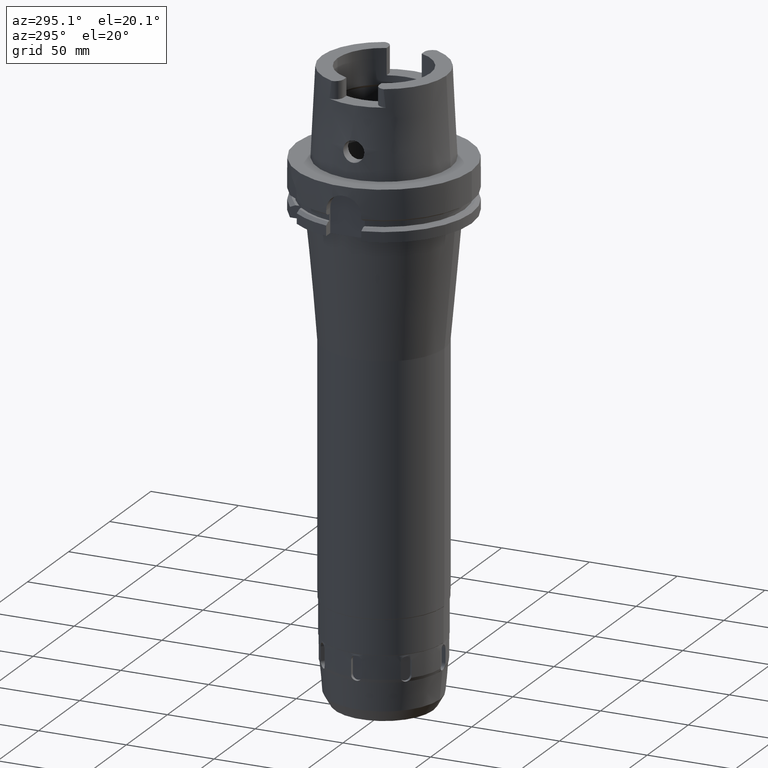
[diagram: clean part render]
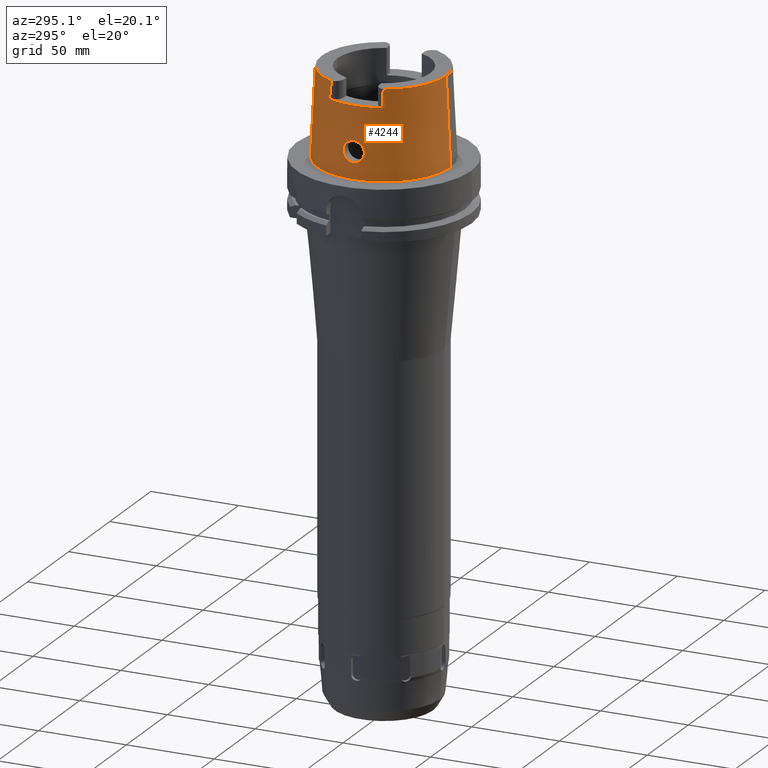
[diagram: same view with one face highlighted and labeled with its STEP entity id]
A machine part, auxiliary view. The second image highlights one B-rep face of the part: STEP entity #4244.
In plain terms, the highlighted conical surface has half-angle 2.862 deg.
Its self-contained STEP definition (entity closure, byte-faithful):
#26=CARTESIAN_POINT('',(0.E0,0.E0,5.E1));
#27=DIRECTION('',(0.E0,0.E0,-1.E0));
#28=DIRECTION('',(-9.084449337998E-1,4.180045481253E-1,0.E0));
#29=AXIS2_PLACEMENT_3D('',#26,#27,#28);
#138=CARTESIAN_POINT('',(0.E0,0.E0,4.E1));
#139=DIRECTION('',(0.E0,0.E0,-1.E0));
#140=DIRECTION('',(-8.958345712660E-1,-4.443876921391E-1,0.E0));
#141=AXIS2_PLACEMENT_3D('',#138,#139,#140);
#215=CARTESIAN_POINT('',(0.E0,0.E0,5.E1));
#216=DIRECTION('',(0.E0,0.E0,-1.E0));
#217=DIRECTION('',(0.E0,-1.E0,0.E0));
#218=AXIS2_PLACEMENT_3D('',#215,#216,#217);
#237=CARTESIAN_POINT('',(-3.224999792789E1,-1.599794420487E1,4.E1));
#238=CARTESIAN_POINT('',(-3.224999792789E1,-1.587762286888E1,4.106935178891E1));
#239=CARTESIAN_POINT('',(-3.225000039790E1,-1.563535463004E1,4.320400757266E1));
#240=CARTESIAN_POINT('',(-3.225000171551E1,-1.526594257037E1,4.639384715968E1));
#241=CARTESIAN_POINT('',(-3.224999573187E1,-1.501614223330E1,4.851211988319E1));
#242=CARTESIAN_POINT('',(-3.224999573187E1,-1.489000911480E1,4.956954429611E1));
#247=CARTESIAN_POINT('',(-3.224999573187E1,-1.489000911480E1,4.956954429611E1));
#248=CARTESIAN_POINT('',(-3.224999573187E1,-1.487288843391E1,4.971307381594E1));
#249=CARTESIAN_POINT('',(-3.224990994430E1,-1.485592689490E1,4.985643189832E1));
#250=CARTESIAN_POINT('',(-3.224973489268E1,-1.483913373217E1,5.E1));
#255=DIRECTION('',(0.E0,-4.993926899643E-2,-9.987522562738E-1));
#256=VECTOR('',#255,5.006246512678E1);
#257=CARTESIAN_POINT('',(0.E0,-3.549993366993E1,5.E1));
#258=LINE('',#257,#256);
#262=CARTESIAN_POINT('',(-3.224973489268E1,1.483913373217E1,5.E1));
#263=CARTESIAN_POINT('',(-3.224990994430E1,1.485592689490E1,4.985643189832E1));
#264=CARTESIAN_POINT('',(-3.225000116542E1,1.487287679076E1,4.971282992167E1));
#265=CARTESIAN_POINT('',(-3.225000116542E1,1.488999751121E1,4.956930040655E1));
#270=CARTESIAN_POINT('',(-3.225000116542E1,1.488999751121E1,4.956930040655E1));
#271=CARTESIAN_POINT('',(-3.225000116542E1,1.501607683693E1,4.851232943727E1));
#272=CARTESIAN_POINT('',(-3.225000066537E1,1.526602559293E1,4.639402488739E1));
#273=CARTESIAN_POINT('',(-3.224999592308E1,1.563543690356E1,4.320425699329E1));
#274=CARTESIAN_POINT('',(-3.225000906923E1,1.587756168671E1,4.106944208428E1));
#275=CARTESIAN_POINT('',(-3.225000906923E1,1.599789368937E1,4.E1));
#280=CARTESIAN_POINT('',(-3.755000165825E1,1.321481209883E-13,9.E0));
#281=CARTESIAN_POINT('',(-3.755000165825E1,-5.652545553166E-1,9.E0));
#282=CARTESIAN_POINT('',(-3.751565579630E1,-1.697600155753E0,9.161408213812E0));
#283=CARTESIAN_POINT('',(-3.737435180720E1,-3.259853815241E0,9.866142398235E0));
#284=CARTESIAN_POINT('',(-3.717520694164E1,-4.579797464524E0,1.099539911532E1));
#285=CARTESIAN_POINT('',(-3.696774455E1,-5.530233516511E0,1.246498417070E1));
#286=CARTESIAN_POINT('',(-3.680414013403E1,-6.020897028062E0,1.413483327440E1));
#287=CARTESIAN_POINT('',(-3.671639729483E1,-6.019450711596E0,1.587026544933E1));
#288=CARTESIAN_POINT('',(-3.671137688359E1,-5.532485083436E0,1.752401334158E1));
#289=CARTESIAN_POINT('',(-3.676980479697E1,-4.604605501925E0,1.897274776101E1));
#290=CARTESIAN_POINT('',(-3.685673202694E1,-3.299068349662E0,2.011027645173E1));
#291=CARTESIAN_POINT('',(-3.693088068961E1,-1.718628427286E0,2.083492878241E1));
#292=CARTESIAN_POINT('',(-3.694998175923E1,-5.729676845819E-1,2.1E1));
#293=CARTESIAN_POINT('',(-3.694998175923E1,0.E0,2.1E1));
#298=CARTESIAN_POINT('',(-3.694998175923E1,0.E0,2.1E1));
#299=CARTESIAN_POINT('',(-3.694998175923E1,5.710509783392E-1,2.1E1));
#300=CARTESIAN_POINT('',(-3.693098509304E1,1.713984038513E0,2.083574060071E1));
#301=CARTESIAN_POINT('',(-3.685720600816E1,3.291240740658E0,2.011536583091E1));
#302=CARTESIAN_POINT('',(-3.676984175228E1,4.604076114758E0,1.897509050909E1));
#303=CARTESIAN_POINT('',(-3.671112841205E1,5.536699381628E0,1.751618954703E1));
#304=CARTESIAN_POINT('',(-3.671673814162E1,6.019465019613E0,1.586333566223E1));
#305=CARTESIAN_POINT('',(-3.680371390155E1,6.020244181238E0,1.414522776370E1));
#306=CARTESIAN_POINT('',(-3.696432921905E1,5.542097815845E0,1.249518279294E1));
#307=CARTESIAN_POINT('',(-3.717016658241E1,4.606966336135E0,1.102653272684E1));
#308=CARTESIAN_POINT('',(-3.737155643393E1,3.285914575798E0,9.880243986700E0));
#309=CARTESIAN_POINT('',(-3.751568736874E1,1.702765446525E0,9.161145793888E0));
#310=CARTESIAN_POINT('',(-3.755000165825E1,5.659873196111E-1,9.E0));
#311=CARTESIAN_POINT('',(-3.755000165825E1,1.321481209883E-13,9.E0));
#334=DIRECTION('',(0.E0,4.993926899643E-2,-9.987522562738E-1));
#335=VECTOR('',#334,5.006246512678E1);
#336=CARTESIAN_POINT('',(0.E0,3.549993366993E1,5.E1));
#337=LINE('',#336,#335);
#3380=CARTESIAN_POINT('',(0.E0,0.E0,5.684341886081E-13));
#3381=DIRECTION('',(0.E0,0.E0,1.E0));
#3382=DIRECTION('',(0.E0,1.E0,0.E0));
#3383=AXIS2_PLACEMENT_3D('',#3380,#3381,#3382);
#3549=CARTESIAN_POINT('',(-3.224973489268E1,1.483913373218E1,5.E1));
#3551=VERTEX_POINT('',#3549);
#3552=CARTESIAN_POINT('',(0.E0,3.549993366992E1,5.E1));
#3553=VERTEX_POINT('',#3552);
#3564=CARTESIAN_POINT('',(-3.224973489268E1,-1.483913373218E1,5.E1));
#3566=VERTEX_POINT('',#3564);
#3578=CARTESIAN_POINT('',(0.E0,-3.549993366992E1,5.E1));
#3579=VERTEX_POINT('',#3578);
#3584=CARTESIAN_POINT('',(-3.225000116542E1,1.488999751121E1,4.956930040655E1));
#3585=VERTEX_POINT('',#3584);
#3598=CARTESIAN_POINT('',(-3.224999792789E1,-1.599794420487E1,4.E1));
#3599=VERTEX_POINT('',#3598);
#3600=CARTESIAN_POINT('',(-3.224999999999E1,1.599793480981E1,4.E1));
#3601=VERTEX_POINT('',#3600);
#3602=VERTEX_POINT('',#247);
#3603=CARTESIAN_POINT('',(0.E0,-3.800001658252E1,6.039613253961E-13));
#3604=VERTEX_POINT('',#3603);
#3605=CARTESIAN_POINT('',(0.E0,3.800001658252E1,5.684341886081E-13));
#3606=VERTEX_POINT('',#3605);
#3607=VERTEX_POINT('',#280);
#3608=VERTEX_POINT('',#293);
#4216=CARTESIAN_POINT('',(0.E0,0.E0,2.5E1));
#4217=DIRECTION('',(0.E0,0.E0,-1.E0));
#4218=DIRECTION('',(0.E0,-1.E0,0.E0));
#4219=AXIS2_PLACEMENT_3D('',#4216,#4217,#4218);
#4220=CONICAL_SURFACE('',#4219,3.674997512622E1,2.8625E0);
#4221=ORIENTED_EDGE('',*,*,#4156,.F.);
#4223=ORIENTED_EDGE('',*,*,#4222,.T.);
#4224=ORIENTED_EDGE('',*,*,#4207,.T.);
#4225=ORIENTED_EDGE('',*,*,#4196,.F.);
#4227=ORIENTED_EDGE('',*,*,#4226,.T.);
#4229=ORIENTED_EDGE('',*,*,#4228,.F.);
#4231=ORIENTED_EDGE('',*,*,#4230,.F.);
#4232=ORIENTED_EDGE('',*,*,#4074,.F.);
#4233=ORIENTED_EDGE('',*,*,#4103,.T.);
#4235=ORIENTED_EDGE('',*,*,#4234,.T.);
#4236=EDGE_LOOP('',(#4221,#4223,#4224,#4225,#4227,#4229,#4231,#4232,#4233,
#4235));
#4237=FACE_OUTER_BOUND('',#4236,.F.);
#4239=ORIENTED_EDGE('',*,*,#4238,.T.);
#4241=ORIENTED_EDGE('',*,*,#4240,.T.);
#4242=EDGE_LOOP('',(#4239,#4241));
#4243=FACE_BOUND('',#4242,.F.);
#30=CIRCLE('',#29,3.549993366992E1);
#142=CIRCLE('',#141,3.599995025244E1);
#219=CIRCLE('',#218,3.549993366992E1);
#243=B_SPLINE_CURVE_WITH_KNOTS('',3,(#237,#238,#239,#240,#241,#242),
.UNSPECIFIED.,.F.,.F.,(4,1,1,4),(0.E0,3.333333333333E-1,6.666666666667E-1,1.E0),
.UNSPECIFIED.);
#251=B_SPLINE_CURVE_WITH_KNOTS('',3,(#247,#248,#249,#250),.UNSPECIFIED.,.F.,.F.,
(4,4),(0.E0,1.E0),.UNSPECIFIED.);
#266=B_SPLINE_CURVE_WITH_KNOTS('',3,(#262,#263,#264,#265),.UNSPECIFIED.,.F.,.F.,
(4,4),(0.E0,1.E0),.UNSPECIFIED.);
#276=B_SPLINE_CURVE_WITH_KNOTS('',3,(#270,#271,#272,#273,#274,#275),
.UNSPECIFIED.,.F.,.F.,(4,1,1,4),(0.E0,3.333333333333E-1,6.666666666667E-1,1.E0),
.UNSPECIFIED.);
#294=B_SPLINE_CURVE_WITH_KNOTS('',3,(#280,#281,#282,#283,#284,#285,#286,#287,
#288,#289,#290,#291,#292,#293),.UNSPECIFIED.,.F.,.F.,(4,1,1,1,1,1,1,1,1,1,1,4),(
0.E0,9.090909090909E-2,1.818181818182E-1,2.727272727273E-1,3.636363636364E-1,
4.545454545455E-1,5.454545454545E-1,6.363636363636E-1,7.272727272727E-1,
8.181818181818E-1,9.090909090909E-1,1.E0),.UNSPECIFIED.);
#312=B_SPLINE_CURVE_WITH_KNOTS('',3,(#298,#299,#300,#301,#302,#303,#304,#305,
#306,#307,#308,#309,#310,#311),.UNSPECIFIED.,.F.,.F.,(4,1,1,1,1,1,1,1,1,1,1,4),(
0.E0,9.090909090909E-2,1.818181818182E-1,2.727272727273E-1,3.636363636364E-1,
4.545454545455E-1,5.454545454545E-1,6.363636363636E-1,7.272727272727E-1,
8.181818181818E-1,9.090909090909E-1,1.E0),.UNSPECIFIED.);
#3384=CIRCLE('',#3383,3.800001658252E1);
#4074=EDGE_CURVE('',#3551,#3553,#30,.T.);
#4103=EDGE_CURVE('',#3551,#3585,#266,.T.);
#4156=EDGE_CURVE('',#3599,#3601,#142,.T.);
#4196=EDGE_CURVE('',#3579,#3566,#219,.T.);
#4207=EDGE_CURVE('',#3602,#3566,#251,.T.);
#4222=EDGE_CURVE('',#3599,#3602,#243,.T.);
#4226=EDGE_CURVE('',#3579,#3604,#258,.T.);
#4228=EDGE_CURVE('',#3606,#3604,#3384,.T.);
#4230=EDGE_CURVE('',#3553,#3606,#337,.T.);
#4234=EDGE_CURVE('',#3585,#3601,#276,.T.);
#4238=EDGE_CURVE('',#3607,#3608,#294,.T.);
#4240=EDGE_CURVE('',#3608,#3607,#312,.T.);
#4244=ADVANCED_FACE('',(#4237,#4243),#4220,.T.);